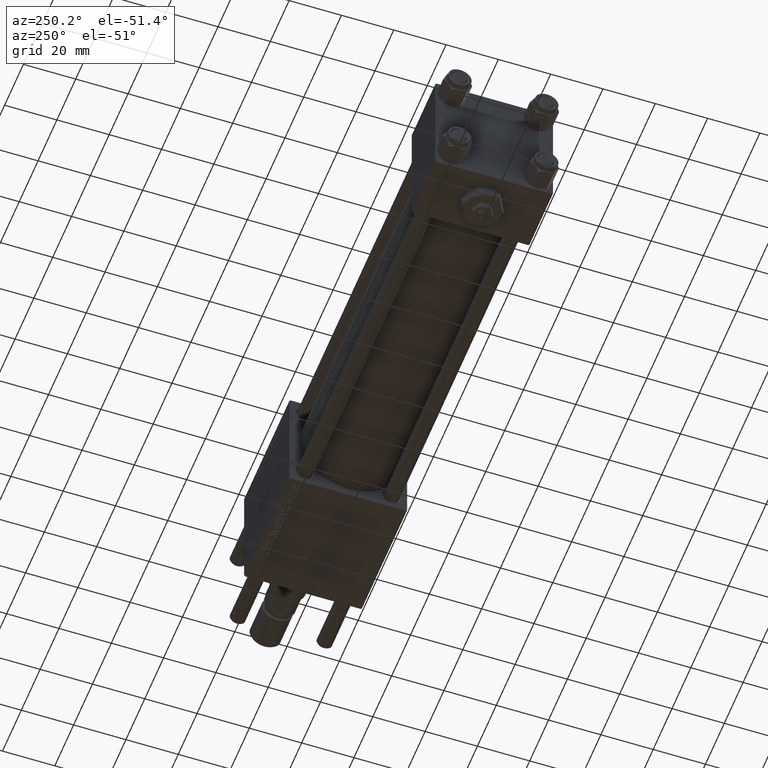
[diagram: clean part render]
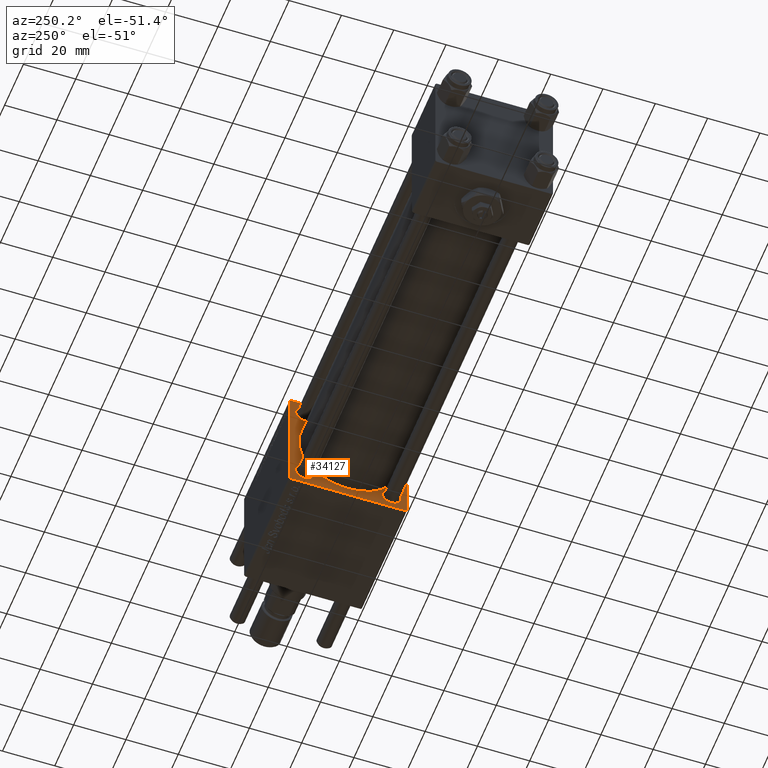
[diagram: same view with one face highlighted and labeled with its STEP entity id]
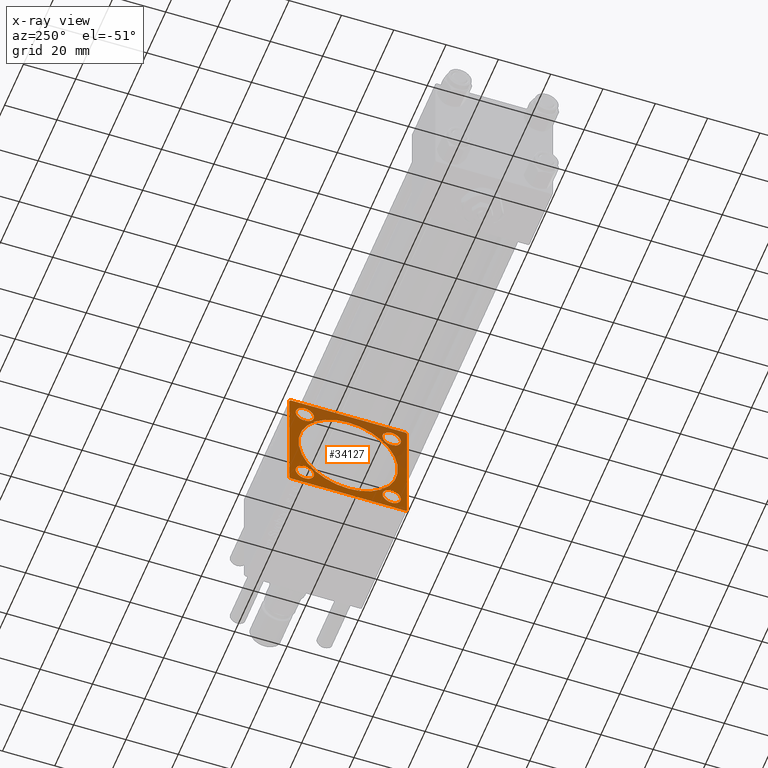
[diagram: x-ray of the same camera — body ghosted, the highlighted face saturated]
A machine part, auxiliary view. The second image highlights one B-rep face of the part: STEP entity #34127.
The next image is the same camera in x-ray: the body ghosted, the highlighted face saturated — about 32% of this face is hidden behind the body in this view.
In plain terms, the highlighted planar face has unit normal (-1, 0, 0).
Its self-contained STEP definition (entity closure, byte-faithful):
#4 = AXIS2_PLACEMENT_3D ( 'NONE', #3591, #58343, #17340 ) ;
#55 = DIRECTION ( 'NONE',  ( 1.000000000000000000, -0.000000000000000000, 0.000000000000000000 ) ) ;
#249 = DIRECTION ( 'NONE',  ( -1.000000000000000000, 0.000000000000000000, -0.000000000000000000 ) ) ;
#463 = EDGE_CURVE ( 'NONE', #14053, #45899, #43020, .T. ) ;
#552 = DIRECTION ( 'NONE',  ( 1.000000000000000000, -0.000000000000000000, 0.000000000000000000 ) ) ;
#708 = EDGE_CURVE ( 'NONE', #14802, #35848, #30248, .T. ) ;
#837 = FACE_BOUND ( 'NONE', #29092, .T. ) ;
#1793 = CARTESIAN_POINT ( 'NONE',  ( 155.0000000000000000, -22.49999999999999645, 22.49999999999999289 ) ) ;
#1884 = CARTESIAN_POINT ( 'NONE',  ( 155.0000000000000000, 22.00000000000000355, 22.50000000000000355 ) ) ;
#2472 = DIRECTION ( 'NONE',  ( 1.000000000000000000, -0.000000000000000000, 0.000000000000000000 ) ) ;
#2556 = CARTESIAN_POINT ( 'NONE',  ( 155.0000000000000000, 22.50000000000000355, -22.49999999999999645 ) ) ;
#2943 = EDGE_CURVE ( 'NONE', #49323, #8440, #35936, .T. ) ;
#3591 = CARTESIAN_POINT ( 'NONE',  ( 155.0000000000000000, -16.59999999999999076, 16.60000000000000853 ) ) ;
#4060 = CARTESIAN_POINT ( 'NONE',  ( 155.0000000000000000, 22.50000000000000355, 22.00000000000000355 ) ) ;
#4693 = CARTESIAN_POINT ( 'NONE',  ( 155.0000000000000000, -16.59999999999999076, -20.09999999999995524 ) ) ;
#4723 = DIRECTION ( 'NONE',  ( -0.000000000000000000, 0.000000000000000000, 1.000000000000000000 ) ) ;
#4828 = CARTESIAN_POINT ( 'NONE',  ( 155.0000000000000000, -16.59999999999999076, -16.60000000000000853 ) ) ;
#5536 = VECTOR ( 'NONE', #38271, 1000.000000000000000 ) ;
#6086 = ORIENTED_EDGE ( 'NONE', *, *, #463, .F. ) ;
#6243 = EDGE_LOOP ( 'NONE', ( #28836, #38554 ) ) ;
#6666 = VERTEX_POINT ( 'NONE', #35442 ) ;
#6684 = VECTOR ( 'NONE', #13975, 1000.000000000000114 ) ;
#6988 = ORIENTED_EDGE ( 'NONE', *, *, #8694, .T. ) ;
#7206 = EDGE_CURVE ( 'NONE', #21267, #21584, #56206, .T. ) ;
#7289 = EDGE_CURVE ( 'NONE', #56680, #45899, #16686, .T. ) ;
#8440 = VERTEX_POINT ( 'NONE', #4060 ) ;
#8450 = CARTESIAN_POINT ( 'NONE',  ( 155.0000000000000000, -21.99999999999998224, 22.49999999999999289 ) ) ;
#8694 = EDGE_CURVE ( 'NONE', #8440, #25529, #54485, .T. ) ;
#9031 = DIRECTION ( 'NONE',  ( 0.000000000000000000, 0.000000000000000000, -1.000000000000000000 ) ) ;
#9609 = DIRECTION ( 'NONE',  ( 0.000000000000000000, 0.7071067811865474617, -0.7071067811865474617 ) ) ;
#9997 = AXIS2_PLACEMENT_3D ( 'NONE', #43106, #2472, #20688 ) ;
#10132 = EDGE_CURVE ( 'NONE', #25529, #6666, #27720, .T. ) ;
#10588 = CIRCLE ( 'NONE', #14364, 3.500000000000003109 ) ;
#11319 = EDGE_CURVE ( 'NONE', #54907, #40105, #28644, .T. ) ;
#12545 = EDGE_CURVE ( 'NONE', #6666, #56680, #42890, .T. ) ;
#12944 = EDGE_CURVE ( 'NONE', #40105, #54907, #23943, .T. ) ;
#13093 = DIRECTION ( 'NONE',  ( 0.000000000000000000, -0.7071067811865426878, 0.7071067811865524577 ) ) ;
#13803 = DIRECTION ( 'NONE',  ( 0.000000000000000000, 0.000000000000000000, 1.000000000000000000 ) ) ;
#13975 = DIRECTION ( 'NONE',  ( -0.000000000000000000, -0.7071067811865474617, -0.7071067811865474617 ) ) ;
#14053 = VERTEX_POINT ( 'NONE', #42225 ) ;
#14364 = AXIS2_PLACEMENT_3D ( 'NONE', #22235, #18621, #55122 ) ;
#14802 = VERTEX_POINT ( 'NONE', #17483 ) ;
#16117 = DIRECTION ( 'NONE',  ( 1.000000000000000000, -0.000000000000000000, 0.000000000000000000 ) ) ;
#16686 = LINE ( 'NONE', #35815, #32325 ) ;
#17055 = EDGE_CURVE ( 'NONE', #58296, #38689, #37324, .T. ) ;
#17307 = ORIENTED_EDGE ( 'NONE', *, *, #12944, .T. ) ;
#17340 = DIRECTION ( 'NONE',  ( 0.000000000000000000, 0.000000000000000000, 1.000000000000000000 ) ) ;
#17483 = CARTESIAN_POINT ( 'NONE',  ( 155.0000000000000000, 16.59999999999999787, -13.10000000000005649 ) ) ;
#18621 = DIRECTION ( 'NONE',  ( 1.000000000000000000, -0.000000000000000000, 0.000000000000000000 ) ) ;
#19124 = DIRECTION ( 'NONE',  ( 1.000000000000000000, 0.000000000000000000, 0.000000000000000000 ) ) ;
#19380 = CARTESIAN_POINT ( 'NONE',  ( 155.0000000000000000, -16.59999999999999076, 20.10000000000000853 ) ) ;
#19400 = DIRECTION ( 'NONE',  ( 1.000000000000000000, -0.000000000000000000, 0.000000000000000000 ) ) ;
#19808 = ORIENTED_EDGE ( 'NONE', *, *, #7206, .T. ) ;
#20286 = CARTESIAN_POINT ( 'NONE',  ( 155.0000000000000000, 22.50000000000000355, -21.99999999999998224 ) ) ;
#20688 = DIRECTION ( 'NONE',  ( 0.000000000000000000, 0.000000000000000000, 1.000000000000000000 ) ) ;
#20886 = CARTESIAN_POINT ( 'NONE',  ( 155.0000000000000000, -16.59999999999999076, -16.60000000000000853 ) ) ;
#21002 = CARTESIAN_POINT ( 'NONE',  ( 155.0000000000000000, -22.24999999999999289, 22.24999999999999289 ) ) ;
#21094 = ORIENTED_EDGE ( 'NONE', *, *, #7289, .T. ) ;
#21267 = VERTEX_POINT ( 'NONE', #30888 ) ;
#21584 = VERTEX_POINT ( 'NONE', #37200 ) ;
#21881 = VERTEX_POINT ( 'NONE', #8450 ) ;
#22235 = CARTESIAN_POINT ( 'NONE',  ( 155.0000000000000000, 16.59999999999999787, 16.60000000000000497 ) ) ;
#22309 = EDGE_LOOP ( 'NONE', ( #31885, #21094, #6086, #55410, #35033, #42194, #6988, #29904 ) ) ;
#22816 = CARTESIAN_POINT ( 'NONE',  ( 155.0000000000000000, -2.602085213965210642E-15, 0.000000000000000000 ) ) ;
#23253 = CARTESIAN_POINT ( 'NONE',  ( 155.0000000000000000, 16.59999999999999787, -16.60000000000000497 ) ) ;
#23317 = CARTESIAN_POINT ( 'NONE',  ( 155.0000000000000000, 16.59999999999999787, -16.60000000000000497 ) ) ;
#23943 = CIRCLE ( 'NONE', #46872, 3.499999999999947597 ) ;
#24100 = EDGE_LOOP ( 'NONE', ( #31133, #19808 ) ) ;
#24173 = CIRCLE ( 'NONE', #43237, 19.00000000000000000 ) ;
#24465 = DIRECTION ( 'NONE',  ( 0.000000000000000000, -1.000000000000000000, -2.312964634635742957E-16 ) ) ;
#25489 = ORIENTED_EDGE ( 'NONE', *, *, #11319, .T. ) ;
#25529 = VERTEX_POINT ( 'NONE', #20286 ) ;
#25566 = EDGE_CURVE ( 'NONE', #49323, #21881, #28965, .T. ) ;
#26303 = EDGE_CURVE ( 'NONE', #46728, #47333, #51046, .T. ) ;
#26683 = CARTESIAN_POINT ( 'NONE',  ( 155.0000000000000000, 16.59999999999999787, -20.09999999999995168 ) ) ;
#27413 = CARTESIAN_POINT ( 'NONE',  ( 155.0000000000000000, 22.24999999999999645, -22.24999999999999645 ) ) ;
#27720 = LINE ( 'NONE', #27413, #6684 ) ;
#27870 = EDGE_LOOP ( 'NONE', ( #17307, #25489 ) ) ;
#28394 = CARTESIAN_POINT ( 'NONE',  ( 155.0000000000000000, -2.602085213965210642E-15, 0.000000000000000000 ) ) ;
#28644 = CIRCLE ( 'NONE', #46839, 3.499999999999947597 ) ;
#28685 = CARTESIAN_POINT ( 'NONE',  ( 155.0000000000000000, -21.99999999999995381, -22.50000000000000000 ) ) ;
#28781 = CIRCLE ( 'NONE', #35504, 3.499999999999947597 ) ;
#28836 = ORIENTED_EDGE ( 'NONE', *, *, #26303, .T. ) ;
#28965 = LINE ( 'NONE', #47211, #32902 ) ;
#29092 = EDGE_LOOP ( 'NONE', ( #29718, #43031 ) ) ;
#29611 = CARTESIAN_POINT ( 'NONE',  ( 155.0000000000000000, -16.59999999999999076, 13.10000000000000320 ) ) ;
#29718 = ORIENTED_EDGE ( 'NONE', *, *, #17055, .T. ) ;
#29821 = EDGE_LOOP ( 'NONE', ( #53018, #38510 ) ) ;
#29904 = ORIENTED_EDGE ( 'NONE', *, *, #10132, .T. ) ;
#30248 = CIRCLE ( 'NONE', #51251, 3.499999999999947597 ) ;
#30296 = LINE ( 'NONE', #21002, #57305 ) ;
#30756 = AXIS2_PLACEMENT_3D ( 'NONE', #22816, #35710, #54843 ) ;
#30888 = CARTESIAN_POINT ( 'NONE',  ( 155.0000000000000000, 16.59999999999999787, 13.10000000000000142 ) ) ;
#31133 = ORIENTED_EDGE ( 'NONE', *, *, #37527, .T. ) ;
#31224 = VECTOR ( 'NONE', #9609, 1000.000000000000114 ) ;
#31491 = AXIS2_PLACEMENT_3D ( 'NONE', #45675, #249, #4723 ) ;
#31885 = ORIENTED_EDGE ( 'NONE', *, *, #12545, .T. ) ;
#32325 = VECTOR ( 'NONE', #13093, 1000.000000000000000 ) ;
#32399 = CARTESIAN_POINT ( 'NONE',  ( 155.0000000000000000, -22.49999999999999645, -21.99999999999995026 ) ) ;
#32550 = VECTOR ( 'NONE', #48009, 1000.000000000000000 ) ;
#32633 = CARTESIAN_POINT ( 'NONE',  ( 155.0000000000000000, -2.752562955852396712E-16, -19.00000000000000000 ) ) ;
#32902 = VECTOR ( 'NONE', #24465, 1000.000000000000000 ) ;
#34127 = ADVANCED_FACE ( 'NONE', ( #36724, #50176, #55570, #41179, #837, #46567 ), #51066, .T. ) ;
#34951 = EDGE_CURVE ( 'NONE', #14053, #21881, #30296, .T. ) ;
#35033 = ORIENTED_EDGE ( 'NONE', *, *, #25566, .F. ) ;
#35336 = EDGE_CURVE ( 'NONE', #47333, #46728, #42932, .T. ) ;
#35442 = CARTESIAN_POINT ( 'NONE',  ( 155.0000000000000000, 22.00000000000000355, -22.49999999999999645 ) ) ;
#35504 = AXIS2_PLACEMENT_3D ( 'NONE', #23317, #54163, #54759 ) ;
#35710 = DIRECTION ( 'NONE',  ( 1.000000000000000000, 0.000000000000000000, 0.000000000000000000 ) ) ;
#35815 = CARTESIAN_POINT ( 'NONE',  ( 155.0000000000000000, -22.25000000000013500, -22.24999999999982947 ) ) ;
#35848 = VERTEX_POINT ( 'NONE', #26683 ) ;
#35936 = LINE ( 'NONE', #50572, #31224 ) ;
#36724 = FACE_BOUND ( 'NONE', #6243, .T. ) ;
#37032 = DIRECTION ( 'NONE',  ( 0.000000000000000000, 0.000000000000000000, 1.000000000000000000 ) ) ;
#37200 = CARTESIAN_POINT ( 'NONE',  ( 155.0000000000000000, 16.59999999999999787, 20.10000000000000853 ) ) ;
#37324 = CIRCLE ( 'NONE', #30756, 19.00000000000000000 ) ;
#37527 = EDGE_CURVE ( 'NONE', #21584, #21267, #10588, .T. ) ;
#37679 = DIRECTION ( 'NONE',  ( 0.000000000000000000, 0.000000000000000000, -1.000000000000000000 ) ) ;
#38271 = DIRECTION ( 'NONE',  ( 0.000000000000000000, 0.000000000000000000, -1.000000000000000000 ) ) ;
#38510 = ORIENTED_EDGE ( 'NONE', *, *, #45003, .T. ) ;
#38554 = ORIENTED_EDGE ( 'NONE', *, *, #35336, .T. ) ;
#38689 = VERTEX_POINT ( 'NONE', #32633 ) ;
#39115 = VECTOR ( 'NONE', #9031, 1000.000000000000000 ) ;
#40105 = VERTEX_POINT ( 'NONE', #46195 ) ;
#40187 = CARTESIAN_POINT ( 'NONE',  ( 155.0000000000000000, -2.602085213965210642E-15, 19.00000000000000000 ) ) ;
#41179 = FACE_BOUND ( 'NONE', #27870, .T. ) ;
#42194 = ORIENTED_EDGE ( 'NONE', *, *, #2943, .T. ) ;
#42225 = CARTESIAN_POINT ( 'NONE',  ( 155.0000000000000000, -22.49999999999999645, 21.99999999999999289 ) ) ;
#42890 = LINE ( 'NONE', #2556, #32550 ) ;
#42932 = CIRCLE ( 'NONE', #4, 3.500000000000003109 ) ;
#43020 = LINE ( 'NONE', #1793, #5536 ) ;
#43031 = ORIENTED_EDGE ( 'NONE', *, *, #48136, .T. ) ;
#43106 = CARTESIAN_POINT ( 'NONE',  ( 155.0000000000000000, -16.59999999999999076, 16.60000000000000853 ) ) ;
#43237 = AXIS2_PLACEMENT_3D ( 'NONE', #28394, #19124, #37679 ) ;
#43581 = CARTESIAN_POINT ( 'NONE',  ( 155.0000000000000000, 16.59999999999999787, 16.60000000000000497 ) ) ;
#45003 = EDGE_CURVE ( 'NONE', #35848, #14802, #28781, .T. ) ;
#45675 = CARTESIAN_POINT ( 'NONE',  ( 155.0000000000000000, 0.000000000000000000, 0.000000000000000000 ) ) ;
#45899 = VERTEX_POINT ( 'NONE', #32399 ) ;
#46195 = CARTESIAN_POINT ( 'NONE',  ( 155.0000000000000000, -16.59999999999999076, -13.10000000000006004 ) ) ;
#46567 = FACE_OUTER_BOUND ( 'NONE', #22309, .T. ) ;
#46728 = VERTEX_POINT ( 'NONE', #19380 ) ;
#46839 = AXIS2_PLACEMENT_3D ( 'NONE', #20886, #16117, #48122 ) ;
#46872 = AXIS2_PLACEMENT_3D ( 'NONE', #4828, #55, #13803 ) ;
#47211 = CARTESIAN_POINT ( 'NONE',  ( 155.0000000000000000, 22.50000000000000355, 22.50000000000000355 ) ) ;
#47333 = VERTEX_POINT ( 'NONE', #29611 ) ;
#47797 = DIRECTION ( 'NONE',  ( 0.000000000000000000, 0.000000000000000000, 1.000000000000000000 ) ) ;
#48009 = DIRECTION ( 'NONE',  ( 0.000000000000000000, -1.000000000000000000, -7.709882115452476934E-17 ) ) ;
#48122 = DIRECTION ( 'NONE',  ( 0.000000000000000000, 0.000000000000000000, 1.000000000000000000 ) ) ;
#48136 = EDGE_CURVE ( 'NONE', #38689, #58296, #24173, .T. ) ;
#48239 = DIRECTION ( 'NONE',  ( -0.000000000000000000, 0.7071067811865474617, 0.7071067811865474617 ) ) ;
#49323 = VERTEX_POINT ( 'NONE', #1884 ) ;
#50176 = FACE_BOUND ( 'NONE', #24100, .T. ) ;
#50469 = AXIS2_PLACEMENT_3D ( 'NONE', #43581, #19400, #47797 ) ;
#50572 = CARTESIAN_POINT ( 'NONE',  ( 155.0000000000000000, 22.25000000000000355, 22.25000000000000355 ) ) ;
#51046 = CIRCLE ( 'NONE', #9997, 3.500000000000003109 ) ;
#51066 = PLANE ( 'NONE',  #31491 ) ;
#51251 = AXIS2_PLACEMENT_3D ( 'NONE', #23253, #552, #37032 ) ;
#53018 = ORIENTED_EDGE ( 'NONE', *, *, #708, .T. ) ;
#54163 = DIRECTION ( 'NONE',  ( 1.000000000000000000, -0.000000000000000000, 0.000000000000000000 ) ) ;
#54485 = LINE ( 'NONE', #58982, #39115 ) ;
#54759 = DIRECTION ( 'NONE',  ( 0.000000000000000000, 0.000000000000000000, 1.000000000000000000 ) ) ;
#54843 = DIRECTION ( 'NONE',  ( 0.000000000000000000, 0.000000000000000000, -1.000000000000000000 ) ) ;
#54907 = VERTEX_POINT ( 'NONE', #4693 ) ;
#55122 = DIRECTION ( 'NONE',  ( 0.000000000000000000, 0.000000000000000000, 1.000000000000000000 ) ) ;
#55410 = ORIENTED_EDGE ( 'NONE', *, *, #34951, .T. ) ;
#55570 = FACE_BOUND ( 'NONE', #29821, .T. ) ;
#56206 = CIRCLE ( 'NONE', #50469, 3.500000000000003109 ) ;
#56680 = VERTEX_POINT ( 'NONE', #28685 ) ;
#57305 = VECTOR ( 'NONE', #48239, 1000.000000000000114 ) ;
#58296 = VERTEX_POINT ( 'NONE', #40187 ) ;
#58343 = DIRECTION ( 'NONE',  ( 1.000000000000000000, -0.000000000000000000, 0.000000000000000000 ) ) ;
#58982 = CARTESIAN_POINT ( 'NONE',  ( 155.0000000000000000, 22.50000000000000355, 22.50000000000000355 ) ) ;